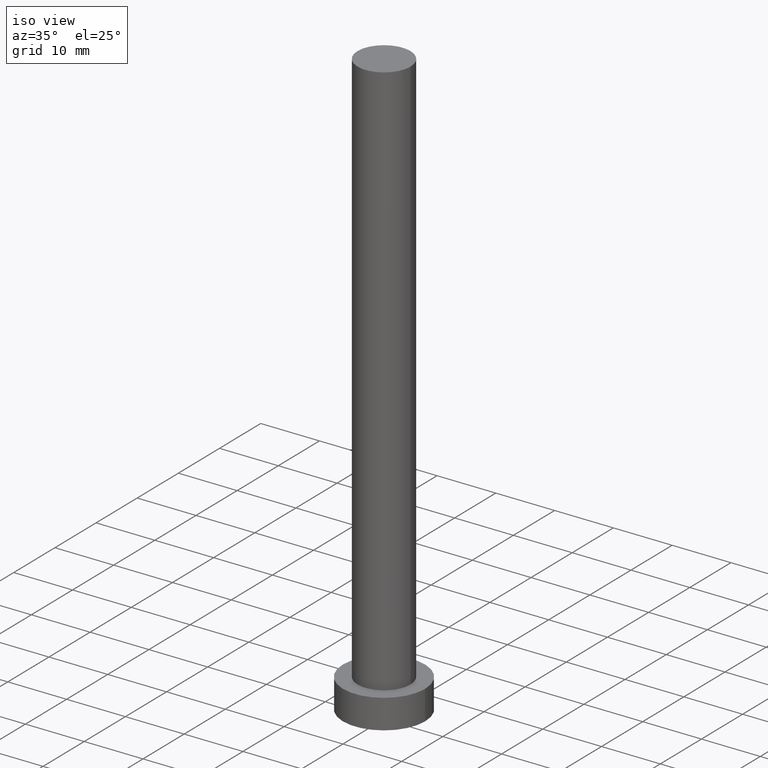
[diagram: clean part render]
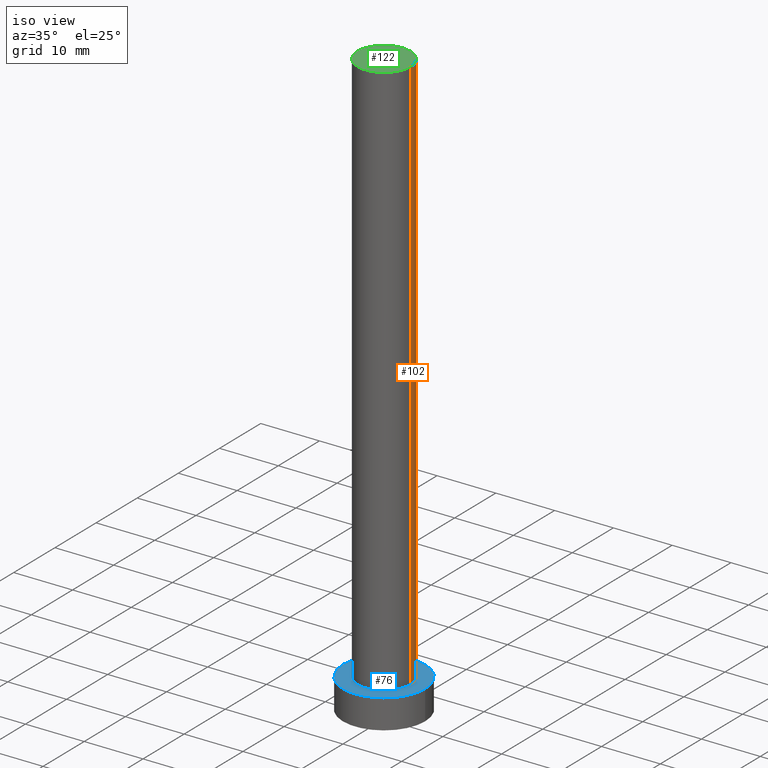
[diagram: same view with three faces highlighted in distinct colors, each labeled with its STEP entity id]
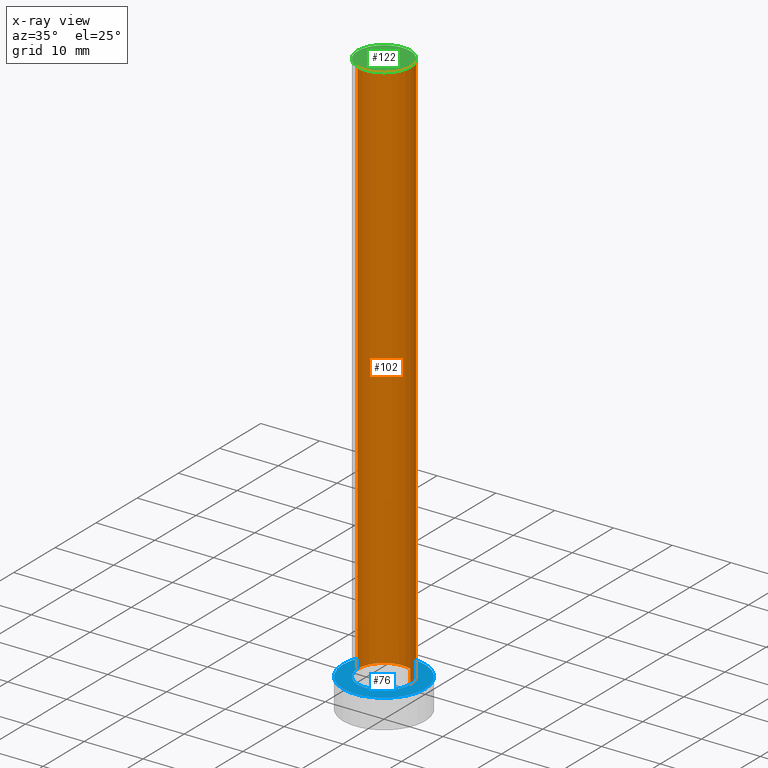
[diagram: x-ray of the same camera — body ghosted, the three highlighted faces saturated]
A machine part, iso view with three faces highlighted in distinct colors.
The next image is the same camera in x-ray (body ghosted, the three faces saturated) — at least one of them is partly hidden behind the body in this view.
Their STEP definitions:

[orange] entity #102 — the highlighted cylindrical surface (edge-blend (fillet) strip) has radius 4.5 mm, axis along (-0, -0, -1).
#4 = CARTESIAN_POINT ( 'NONE',  ( 4.500000000000000888, 5.510910596163089556E-16, 100.0000000000000000 ) ) ;
#7 = DIRECTION ( 'NONE',  ( -1.000000000000000000, 0.000000000000000000, 0.000000000000000000 ) ) ;
#14 = DIRECTION ( 'NONE',  ( 1.000000000000000000, 0.000000000000000000, 0.000000000000000000 ) ) ;
#32 = DIRECTION ( 'NONE',  ( 0.000000000000000000, 0.000000000000000000, 1.000000000000000000 ) ) ;
#38 = AXIS2_PLACEMENT_3D ( 'NONE', #77, #184, #7 ) ;
#45 = VERTEX_POINT ( 'NONE', #91 ) ;
#47 = EDGE_LOOP ( 'NONE', ( #130, #88, #193, #213 ) ) ;
#56 = EDGE_CURVE ( 'NONE', #188, #45, #111, .T. ) ;
#58 = EDGE_CURVE ( 'NONE', #81, #171, #71, .T. ) ;
#68 = DIRECTION ( 'NONE',  ( 1.000000000000000000, 0.000000000000000000, 0.000000000000000000 ) ) ;
#71 = CIRCLE ( 'NONE', #144, 4.500000000000000888 ) ;
#77 = CARTESIAN_POINT ( 'NONE',  ( 0.000000000000000000, 0.000000000000000000, 100.0000000000000000 ) ) ;
#80 = VECTOR ( 'NONE', #142, 1000.000000000000000 ) ;
#81 = VERTEX_POINT ( 'NONE', #4 ) ;
#88 = ORIENTED_EDGE ( 'NONE', *, *, #95, .T. ) ;
#91 = CARTESIAN_POINT ( 'NONE',  ( -4.500000000000000888, 0.000000000000000000, 5.000000000000000000 ) ) ;
#95 = EDGE_CURVE ( 'NONE', #81, #188, #243, .T. ) ;
#97 = CYLINDRICAL_SURFACE ( 'NONE', #38, 4.500000000000000888 ) ;
#102 = ADVANCED_FACE ( 'NONE', ( #145 ), #97, .T. ) ;
#105 = LINE ( 'NONE', #214, #115 ) ;
#111 = CIRCLE ( 'NONE', #198, 4.500000000000000888 ) ;
#115 = VECTOR ( 'NONE', #201, 1000.000000000000000 ) ;
#129 = EDGE_CURVE ( 'NONE', #171, #45, #105, .T. ) ;
#130 = ORIENTED_EDGE ( 'NONE', *, *, #58, .F. ) ;
#138 = CARTESIAN_POINT ( 'NONE',  ( 0.000000000000000000, 0.000000000000000000, 100.0000000000000000 ) ) ;
#142 = DIRECTION ( 'NONE',  ( -0.000000000000000000, -0.000000000000000000, -1.000000000000000000 ) ) ;
#144 = AXIS2_PLACEMENT_3D ( 'NONE', #138, #220, #14 ) ;
#145 = FACE_OUTER_BOUND ( 'NONE', #47, .T. ) ;
#171 = VERTEX_POINT ( 'NONE', #176 ) ;
#176 = CARTESIAN_POINT ( 'NONE',  ( -4.500000000000000888, 0.000000000000000000, 100.0000000000000000 ) ) ;
#184 = DIRECTION ( 'NONE',  ( -0.000000000000000000, -0.000000000000000000, -1.000000000000000000 ) ) ;
#188 = VERTEX_POINT ( 'NONE', #196 ) ;
#193 = ORIENTED_EDGE ( 'NONE', *, *, #56, .T. ) ;
#196 = CARTESIAN_POINT ( 'NONE',  ( 4.500000000000000888, 5.510910596163089556E-16, 5.000000000000000000 ) ) ;
#198 = AXIS2_PLACEMENT_3D ( 'NONE', #217, #32, #68 ) ;
#201 = DIRECTION ( 'NONE',  ( -0.000000000000000000, -0.000000000000000000, -1.000000000000000000 ) ) ;
#213 = ORIENTED_EDGE ( 'NONE', *, *, #129, .F. ) ;
#214 = CARTESIAN_POINT ( 'NONE',  ( -4.500000000000000888, 0.000000000000000000, 100.0000000000000000 ) ) ;
#217 = CARTESIAN_POINT ( 'NONE',  ( 0.000000000000000000, 0.000000000000000000, 5.000000000000000000 ) ) ;
#220 = DIRECTION ( 'NONE',  ( 0.000000000000000000, 0.000000000000000000, 1.000000000000000000 ) ) ;
#241 = CARTESIAN_POINT ( 'NONE',  ( 4.500000000000000888, 5.510910596163089556E-16, 100.0000000000000000 ) ) ;
#243 = LINE ( 'NONE', #241, #80 ) ;

[blue] entity #76 — the highlighted planar face has unit normal (0, 0, 1).
#16 = CARTESIAN_POINT ( 'NONE',  ( -7.000000000000000000, 0.000000000000000000, 5.000000000000000000 ) ) ;
#18 = PLANE ( 'NONE',  #182 ) ;
#22 = AXIS2_PLACEMENT_3D ( 'NONE', #108, #216, #27 ) ;
#27 = DIRECTION ( 'NONE',  ( 1.000000000000000000, 0.000000000000000000, 0.000000000000000000 ) ) ;
#32 = DIRECTION ( 'NONE',  ( 0.000000000000000000, 0.000000000000000000, 1.000000000000000000 ) ) ;
#40 = CARTESIAN_POINT ( 'NONE',  ( 0.000000000000000000, 0.000000000000000000, 5.000000000000000000 ) ) ;
#45 = VERTEX_POINT ( 'NONE', #91 ) ;
#48 = CARTESIAN_POINT ( 'NONE',  ( 0.000000000000000000, 0.000000000000000000, 5.000000000000000000 ) ) ;
#56 = EDGE_CURVE ( 'NONE', #188, #45, #111, .T. ) ;
#67 = AXIS2_PLACEMENT_3D ( 'NONE', #48, #218, #194 ) ;
#68 = DIRECTION ( 'NONE',  ( 1.000000000000000000, 0.000000000000000000, 0.000000000000000000 ) ) ;
#76 = ADVANCED_FACE ( 'NONE', ( #249, #181 ), #18, .T. ) ;
#83 = DIRECTION ( 'NONE',  ( 0.000000000000000000, 0.000000000000000000, 1.000000000000000000 ) ) ;
#91 = CARTESIAN_POINT ( 'NONE',  ( -4.500000000000000888, 0.000000000000000000, 5.000000000000000000 ) ) ;
#104 = ORIENTED_EDGE ( 'NONE', *, *, #211, .F. ) ;
#107 = ORIENTED_EDGE ( 'NONE', *, *, #56, .F. ) ;
#108 = CARTESIAN_POINT ( 'NONE',  ( 0.000000000000000000, 0.000000000000000000, 5.000000000000000000 ) ) ;
#111 = CIRCLE ( 'NONE', #198, 4.500000000000000888 ) ;
#126 = EDGE_LOOP ( 'NONE', ( #147, #226 ) ) ;
#140 = CIRCLE ( 'NONE', #167, 4.500000000000000888 ) ;
#147 = ORIENTED_EDGE ( 'NONE', *, *, #163, .T. ) ;
#150 = CIRCLE ( 'NONE', #67, 7.000000000000000000 ) ;
#153 = DIRECTION ( 'NONE',  ( 0.000000000000000000, 0.000000000000000000, 1.000000000000000000 ) ) ;
#159 = EDGE_CURVE ( 'NONE', #250, #230, #150, .T. ) ;
#163 = EDGE_CURVE ( 'NONE', #230, #250, #179, .T. ) ;
#167 = AXIS2_PLACEMENT_3D ( 'NONE', #170, #153, #248 ) ;
#170 = CARTESIAN_POINT ( 'NONE',  ( 0.000000000000000000, 0.000000000000000000, 5.000000000000000000 ) ) ;
#179 = CIRCLE ( 'NONE', #22, 7.000000000000000000 ) ;
#181 = FACE_OUTER_BOUND ( 'NONE', #126, .T. ) ;
#182 = AXIS2_PLACEMENT_3D ( 'NONE', #40, #83, #207 ) ;
#188 = VERTEX_POINT ( 'NONE', #196 ) ;
#194 = DIRECTION ( 'NONE',  ( 1.000000000000000000, 0.000000000000000000, 0.000000000000000000 ) ) ;
#196 = CARTESIAN_POINT ( 'NONE',  ( 4.500000000000000888, 5.510910596163089556E-16, 5.000000000000000000 ) ) ;
#198 = AXIS2_PLACEMENT_3D ( 'NONE', #217, #32, #68 ) ;
#204 = CARTESIAN_POINT ( 'NONE',  ( 7.000000000000000000, 8.572527594031473190E-16, 5.000000000000000000 ) ) ;
#207 = DIRECTION ( 'NONE',  ( 1.000000000000000000, 0.000000000000000000, -0.000000000000000000 ) ) ;
#211 = EDGE_CURVE ( 'NONE', #45, #188, #140, .T. ) ;
#216 = DIRECTION ( 'NONE',  ( 0.000000000000000000, 0.000000000000000000, 1.000000000000000000 ) ) ;
#217 = CARTESIAN_POINT ( 'NONE',  ( 0.000000000000000000, 0.000000000000000000, 5.000000000000000000 ) ) ;
#218 = DIRECTION ( 'NONE',  ( 0.000000000000000000, 0.000000000000000000, 1.000000000000000000 ) ) ;
#226 = ORIENTED_EDGE ( 'NONE', *, *, #159, .T. ) ;
#230 = VERTEX_POINT ( 'NONE', #16 ) ;
#232 = EDGE_LOOP ( 'NONE', ( #104, #107 ) ) ;
#248 = DIRECTION ( 'NONE',  ( 1.000000000000000000, 0.000000000000000000, 0.000000000000000000 ) ) ;
#249 = FACE_BOUND ( 'NONE', #232, .T. ) ;
#250 = VERTEX_POINT ( 'NONE', #204 ) ;

[green] entity #122 — the highlighted planar face has unit normal (0, 0, 1).
#4 = CARTESIAN_POINT ( 'NONE',  ( 4.500000000000000888, 5.510910596163089556E-16, 100.0000000000000000 ) ) ;
#14 = DIRECTION ( 'NONE',  ( 1.000000000000000000, 0.000000000000000000, 0.000000000000000000 ) ) ;
#26 = ORIENTED_EDGE ( 'NONE', *, *, #229, .T. ) ;
#33 = DIRECTION ( 'NONE',  ( 0.000000000000000000, 0.000000000000000000, 1.000000000000000000 ) ) ;
#46 = DIRECTION ( 'NONE',  ( 1.000000000000000000, 0.000000000000000000, -0.000000000000000000 ) ) ;
#49 = DIRECTION ( 'NONE',  ( 0.000000000000000000, 0.000000000000000000, 1.000000000000000000 ) ) ;
#58 = EDGE_CURVE ( 'NONE', #81, #171, #71, .T. ) ;
#71 = CIRCLE ( 'NONE', #144, 4.500000000000000888 ) ;
#81 = VERTEX_POINT ( 'NONE', #4 ) ;
#84 = AXIS2_PLACEMENT_3D ( 'NONE', #253, #33, #200 ) ;
#101 = EDGE_LOOP ( 'NONE', ( #26, #124 ) ) ;
#112 = PLANE ( 'NONE',  #237 ) ;
#122 = ADVANCED_FACE ( 'NONE', ( #125 ), #112, .T. ) ;
#124 = ORIENTED_EDGE ( 'NONE', *, *, #58, .T. ) ;
#125 = FACE_OUTER_BOUND ( 'NONE', #101, .T. ) ;
#138 = CARTESIAN_POINT ( 'NONE',  ( 0.000000000000000000, 0.000000000000000000, 100.0000000000000000 ) ) ;
#144 = AXIS2_PLACEMENT_3D ( 'NONE', #138, #220, #14 ) ;
#149 = CARTESIAN_POINT ( 'NONE',  ( 0.000000000000000000, 0.000000000000000000, 100.0000000000000000 ) ) ;
#171 = VERTEX_POINT ( 'NONE', #176 ) ;
#176 = CARTESIAN_POINT ( 'NONE',  ( -4.500000000000000888, 0.000000000000000000, 100.0000000000000000 ) ) ;
#200 = DIRECTION ( 'NONE',  ( 1.000000000000000000, 0.000000000000000000, 0.000000000000000000 ) ) ;
#205 = CIRCLE ( 'NONE', #84, 4.500000000000000888 ) ;
#220 = DIRECTION ( 'NONE',  ( 0.000000000000000000, 0.000000000000000000, 1.000000000000000000 ) ) ;
#229 = EDGE_CURVE ( 'NONE', #171, #81, #205, .T. ) ;
#237 = AXIS2_PLACEMENT_3D ( 'NONE', #149, #49, #46 ) ;
#253 = CARTESIAN_POINT ( 'NONE',  ( 0.000000000000000000, 0.000000000000000000, 100.0000000000000000 ) ) ;